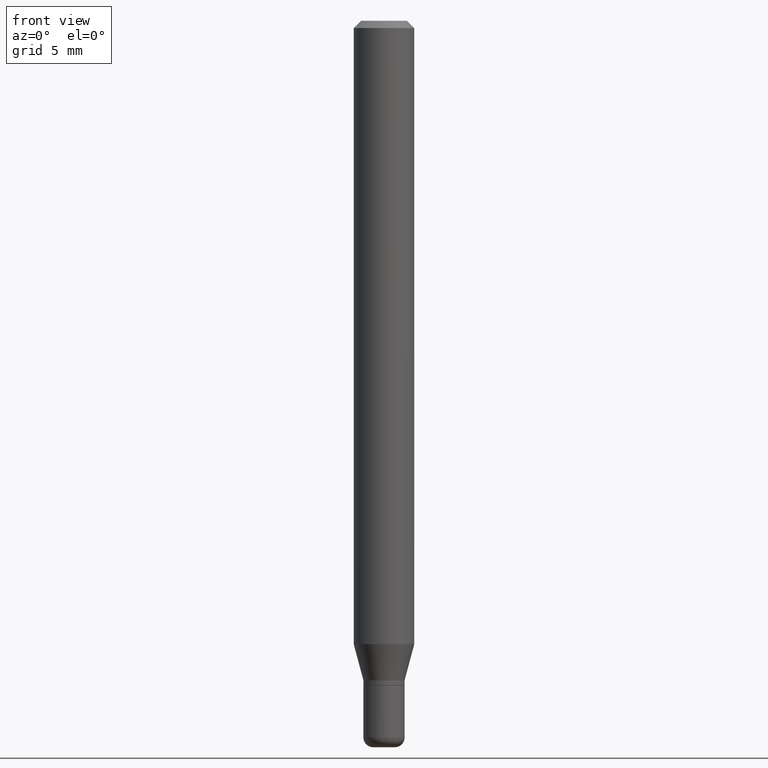
[diagram: clean part render]
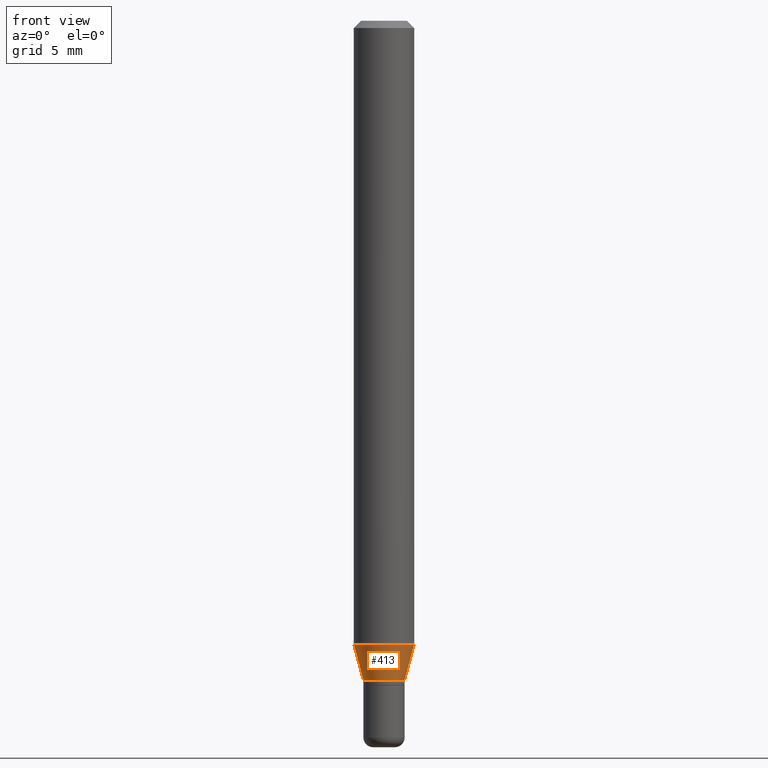
[diagram: same view with one face highlighted and labeled with its STEP entity id]
A machine part, front view. The second image highlights one B-rep face of the part: STEP entity #413.
In plain terms, the highlighted conical surface has half-angle 15 deg.
Its self-contained STEP definition (entity closure, byte-faithful):
#2 = VECTOR ( 'NONE', #198, 39.37007874015748143 ) ;
#15 = DIRECTION ( 'NONE',  ( -0.2588190451025210725, 5.211531920934548675E-15, 0.9659258262890682012 ) ) ;
#27 = CARTESIAN_POINT ( 'NONE',  ( 3.330728514024156148E-29, -4.755397583504364259E-15, -1.362000000000000099 ) ) ;
#44 = DIRECTION ( 'NONE',  ( 1.000000000000000000, -6.982962677686269866E-15, 0.000000000000000000 ) ) ;
#64 = CARTESIAN_POINT ( 'NONE',  ( -0.06250000000000000000, -4.050700658649478029E-15, -1.287358983848622795 ) ) ;
#72 = VECTOR ( 'NONE', #15, 39.37007874015748143 ) ;
#81 = CARTESIAN_POINT ( 'NONE',  ( 0.06250000000000000000, -4.931225035854932314E-15, -1.287358983848622795 ) ) ;
#84 = ORIENTED_EDGE ( 'NONE', *, *, #397, .F. ) ;
#109 = CIRCLE ( 'NONE', #312, 0.06250000000000000000 ) ;
#117 = ORIENTED_EDGE ( 'NONE', *, *, #458, .T. ) ;
#121 = AXIS2_PLACEMENT_3D ( 'NONE', #416, #165, #44 ) ;
#124 = ORIENTED_EDGE ( 'NONE', *, *, #376, .T. ) ;
#126 = EDGE_LOOP ( 'NONE', ( #270, #117, #124, #84 ) ) ;
#138 = LINE ( 'NONE', #187, #72 ) ;
#151 = CARTESIAN_POINT ( 'NONE',  ( 3.148196237364002379E-29, -4.494789868499541434E-15, -1.287358983848622795 ) ) ;
#159 = CIRCLE ( 'NONE', #121, 0.04250000000000003081 ) ;
#162 = LINE ( 'NONE', #201, #2 ) ;
#165 = DIRECTION ( 'NONE',  ( -2.445468806185136597E-29, 3.491481338843145583E-15, 1.000000000000000000 ) ) ;
#187 = CARTESIAN_POINT ( 'NONE',  ( -0.04250000000000003081, -4.453416920806321806E-15, -1.362000000000000099 ) ) ;
#196 = DIRECTION ( 'NONE',  ( -2.445468806185136597E-29, 3.491481338843145583E-15, 1.000000000000000000 ) ) ;
#198 = DIRECTION ( 'NONE',  ( 0.2588190451025210725, 1.565188264969624137E-15, 0.9659258262890682012 ) ) ;
#201 = CARTESIAN_POINT ( 'NONE',  ( 0.04250000000000003081, -5.052173497306030910E-15, -1.362000000000000099 ) ) ;
#208 = EDGE_CURVE ( 'NONE', #407, #334, #138, .T. ) ;
#235 = CARTESIAN_POINT ( 'NONE',  ( -0.04250000000000003081, -4.252058789727899918E-15, -1.362000000000000099 ) ) ;
#249 = CONICAL_SURFACE ( 'NONE', #371, 0.04250000000000003081, 0.2617993877991497409 ) ;
#270 = ORIENTED_EDGE ( 'NONE', *, *, #208, .F. ) ;
#280 = DIRECTION ( 'NONE',  ( 1.000000000000000000, -6.982962677686269866E-15, 0.000000000000000000 ) ) ;
#312 = AXIS2_PLACEMENT_3D ( 'NONE', #151, #468, #398 ) ;
#334 = VERTEX_POINT ( 'NONE', #64 ) ;
#357 = FACE_OUTER_BOUND ( 'NONE', #126, .T. ) ;
#371 = AXIS2_PLACEMENT_3D ( 'NONE', #27, #196, #280 ) ;
#376 = EDGE_CURVE ( 'NONE', #479, #470, #162, .T. ) ;
#397 = EDGE_CURVE ( 'NONE', #334, #470, #109, .T. ) ;
#398 = DIRECTION ( 'NONE',  ( 1.000000000000000000, -6.982962677686262766E-15, 0.000000000000000000 ) ) ;
#407 = VERTEX_POINT ( 'NONE', #235 ) ;
#413 = ADVANCED_FACE ( 'NONE', ( #357 ), #249, .T. ) ;
#416 = CARTESIAN_POINT ( 'NONE',  ( 3.330728514024156148E-29, -4.755397583504364259E-15, -1.362000000000000099 ) ) ;
#457 = CARTESIAN_POINT ( 'NONE',  ( 0.04250000000000003081, -5.052173497306030910E-15, -1.362000000000000099 ) ) ;
#458 = EDGE_CURVE ( 'NONE', #407, #479, #159, .T. ) ;
#468 = DIRECTION ( 'NONE',  ( -2.445468806185136597E-29, 3.491481338843145583E-15, 1.000000000000000000 ) ) ;
#470 = VERTEX_POINT ( 'NONE', #81 ) ;
#479 = VERTEX_POINT ( 'NONE', #457 ) ;